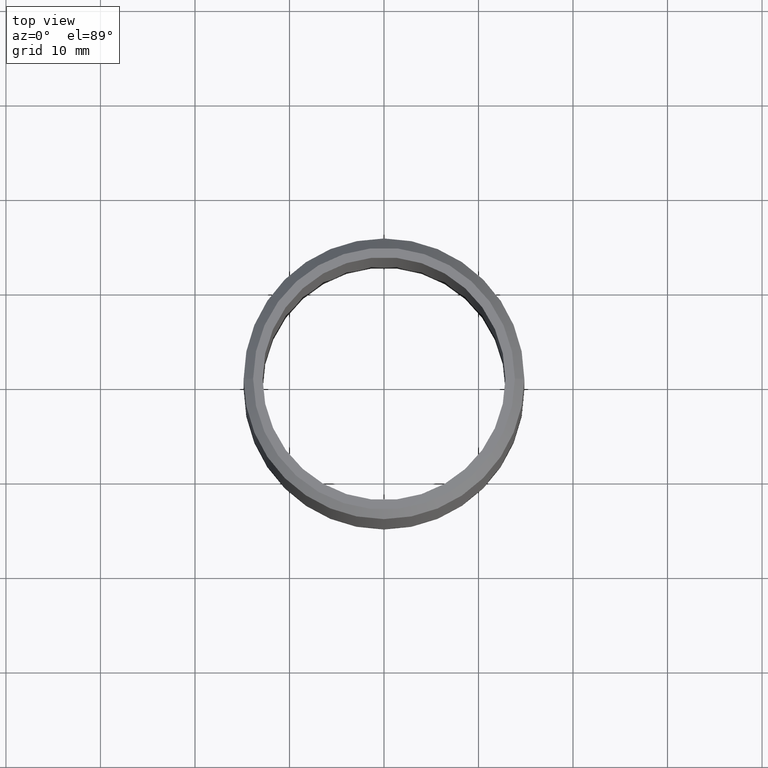
[diagram: clean part render]
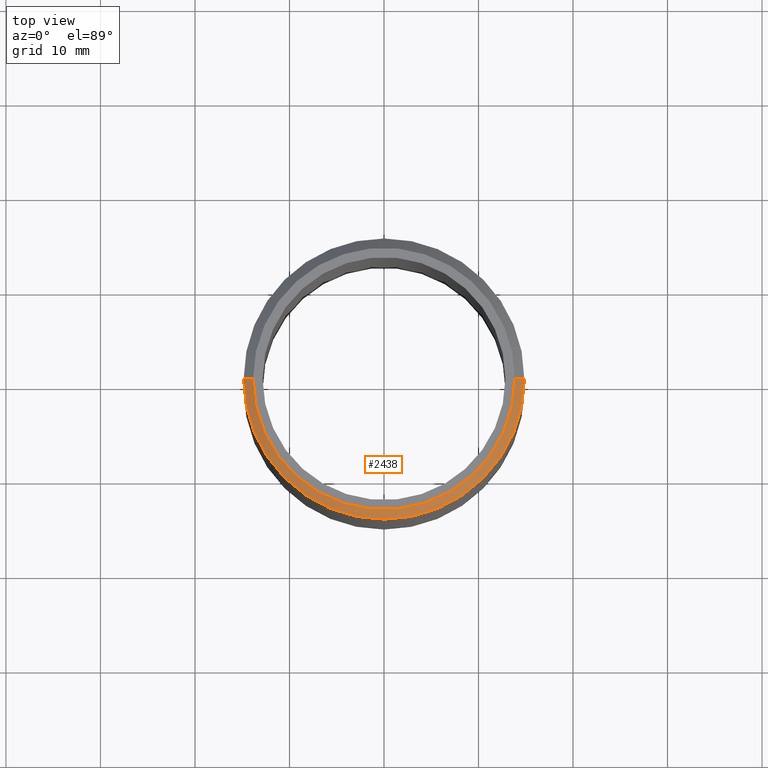
[diagram: same view with one face highlighted and labeled with its STEP entity id]
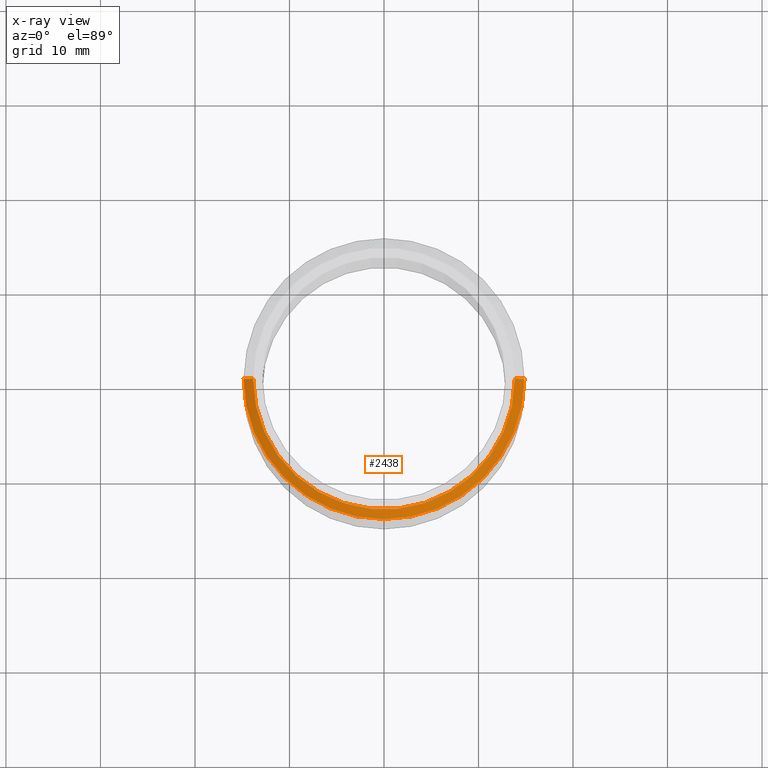
[diagram: x-ray of the same camera — body ghosted, the highlighted face saturated]
A machine part, top view. The second image highlights one B-rep face of the part: STEP entity #2438.
The next image is the same camera in x-ray: the body ghosted, the highlighted face saturated — about 0% of this face is hidden behind the body in this view.
In plain terms, the highlighted conical surface has half-angle 45 deg.
Its self-contained STEP definition (entity closure, byte-faithful):
#16 = DIRECTION ( 'NONE',  ( 1.000000000000000000, 0.0000000000000000000, 0.0000000000000000000 ) ) ;
#524 = AXIS2_PLACEMENT_3D ( 'NONE', #9537, #11260, #12354 ) ;
#597 = ORIENTED_EDGE ( 'NONE', *, *, #7771, .T. ) ;
#659 = CARTESIAN_POINT ( 'NONE',  ( 13.84999999999998700, 1.757368156776451200E-015, 32.50000000000000000 ) ) ;
#812 = DIRECTION ( 'NONE',  ( -1.000000000000000000, 0.0000000000000000000, 0.0000000000000000000 ) ) ;
#2228 = CARTESIAN_POINT ( 'NONE',  ( -14.85000000000000100, 0.0000000000000000000, 31.49999999999999300 ) ) ;
#2438 = ADVANCED_FACE ( 'NONE', ( #5033 ), #10868, .T. ) ;
#2627 = EDGE_CURVE ( 'NONE', #3778, #6930, #5460, .T. ) ;
#2649 = VERTEX_POINT ( 'NONE', #11652 ) ;
#2822 = AXIS2_PLACEMENT_3D ( 'NONE', #4761, #5883, #16 ) ;
#3245 = CARTESIAN_POINT ( 'NONE',  ( -13.84999999999998700, 0.0000000000000000000, 32.50000000000000000 ) ) ;
#3778 = VERTEX_POINT ( 'NONE', #6770 ) ;
#3960 = VECTOR ( 'NONE', #7243, 1000.000000000000100 ) ;
#4126 = EDGE_CURVE ( 'NONE', #11926, #3778, #4675, .T. ) ;
#4449 = CARTESIAN_POINT ( 'NONE',  ( 0.0000000000000000000, 0.0000000000000000000, 32.50000000000000000 ) ) ;
#4675 = LINE ( 'NONE', #11349, #10523 ) ;
#4761 = CARTESIAN_POINT ( 'NONE',  ( 0.0000000000000000000, 0.0000000000000000000, 31.49999999999999300 ) ) ;
#5033 = FACE_OUTER_BOUND ( 'NONE', #11835, .T. ) ;
#5460 = CIRCLE ( 'NONE', #2822, 14.85000000000000100 ) ;
#5883 = DIRECTION ( 'NONE',  ( 0.0000000000000000000, 0.0000000000000000000, -1.000000000000000000 ) ) ;
#6415 = ORIENTED_EDGE ( 'NONE', *, *, #2627, .F. ) ;
#6770 = CARTESIAN_POINT ( 'NONE',  ( 14.85000000000000100, 1.818600496733819900E-015, 31.49999999999999300 ) ) ;
#6930 = VERTEX_POINT ( 'NONE', #2228 ) ;
#7243 = DIRECTION ( 'NONE',  ( -0.7071067811865500200, 0.0000000000000000000, -0.7071067811865451300 ) ) ;
#7424 = DIRECTION ( 'NONE',  ( 0.0000000000000000000, 0.0000000000000000000, -1.000000000000000000 ) ) ;
#7771 = EDGE_CURVE ( 'NONE', #2649, #6930, #11177, .T. ) ;
#9537 = CARTESIAN_POINT ( 'NONE',  ( 0.0000000000000000000, 0.0000000000000000000, 32.50000000000000000 ) ) ;
#10208 = ORIENTED_EDGE ( 'NONE', *, *, #10336, .F. ) ;
#10336 = EDGE_CURVE ( 'NONE', #2649, #11926, #12327, .T. ) ;
#10523 = VECTOR ( 'NONE', #12406, 1000.000000000000100 ) ;
#10868 = CONICAL_SURFACE ( 'NONE', #11934, 13.84999999999998700, 0.7853981633974517200 ) ;
#11093 = ORIENTED_EDGE ( 'NONE', *, *, #4126, .F. ) ;
#11177 = LINE ( 'NONE', #3245, #3960 ) ;
#11260 = DIRECTION ( 'NONE',  ( 0.0000000000000000000, 0.0000000000000000000, 1.000000000000000000 ) ) ;
#11349 = CARTESIAN_POINT ( 'NONE',  ( 13.84999999999998700, 1.696135816819082600E-015, 32.50000000000000000 ) ) ;
#11652 = CARTESIAN_POINT ( 'NONE',  ( -13.84999999999998700, 0.0000000000000000000, 32.50000000000000000 ) ) ;
#11835 = EDGE_LOOP ( 'NONE', ( #11093, #10208, #597, #6415 ) ) ;
#11926 = VERTEX_POINT ( 'NONE', #659 ) ;
#11934 = AXIS2_PLACEMENT_3D ( 'NONE', #4449, #7424, #812 ) ;
#12327 = CIRCLE ( 'NONE', #524, 13.84999999999998700 ) ;
#12354 = DIRECTION ( 'NONE',  ( 1.000000000000000000, 0.0000000000000000000, 0.0000000000000000000 ) ) ;
#12406 = DIRECTION ( 'NONE',  ( 0.7071067811865500200, 8.659560562354963700E-017, -0.7071067811865451300 ) ) ;